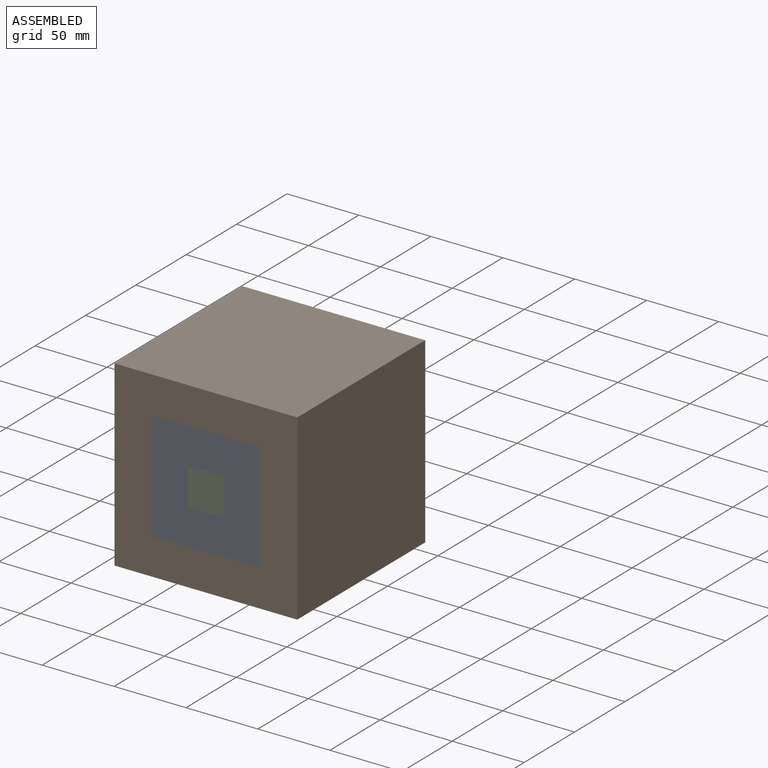
[diagram: assembled view]
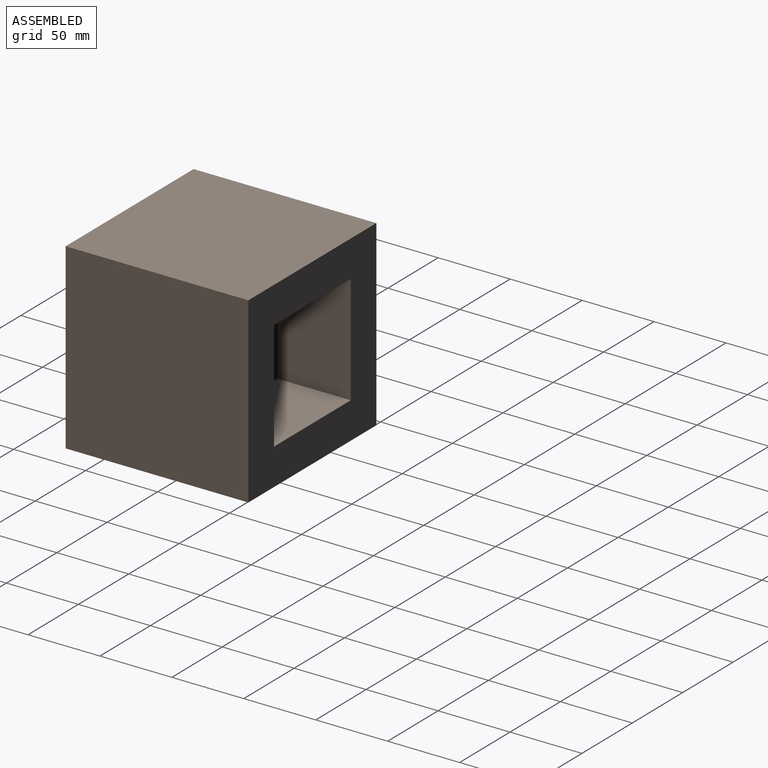
[diagram: assembled view, second angle]
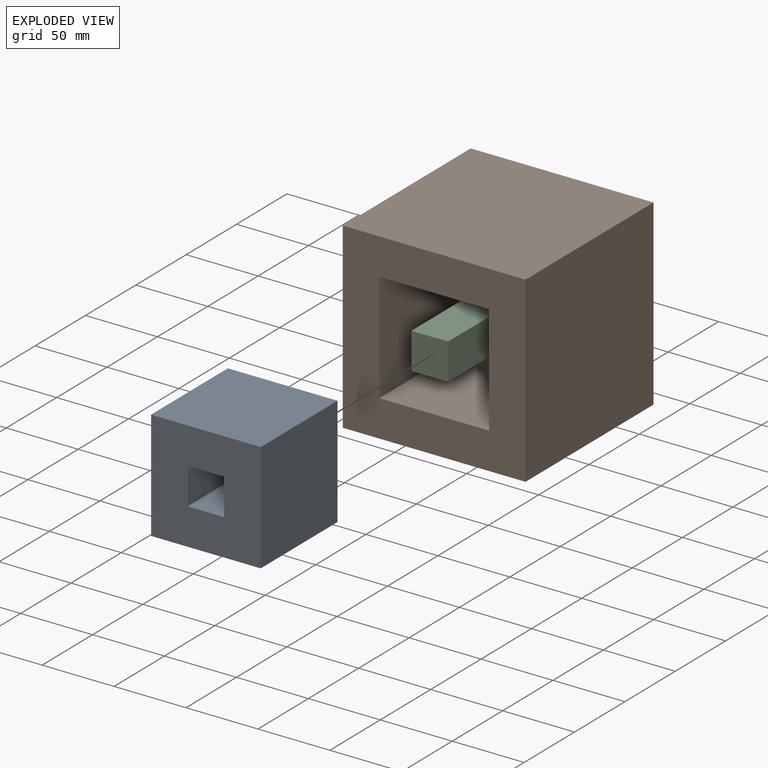
[diagram: exploded view]
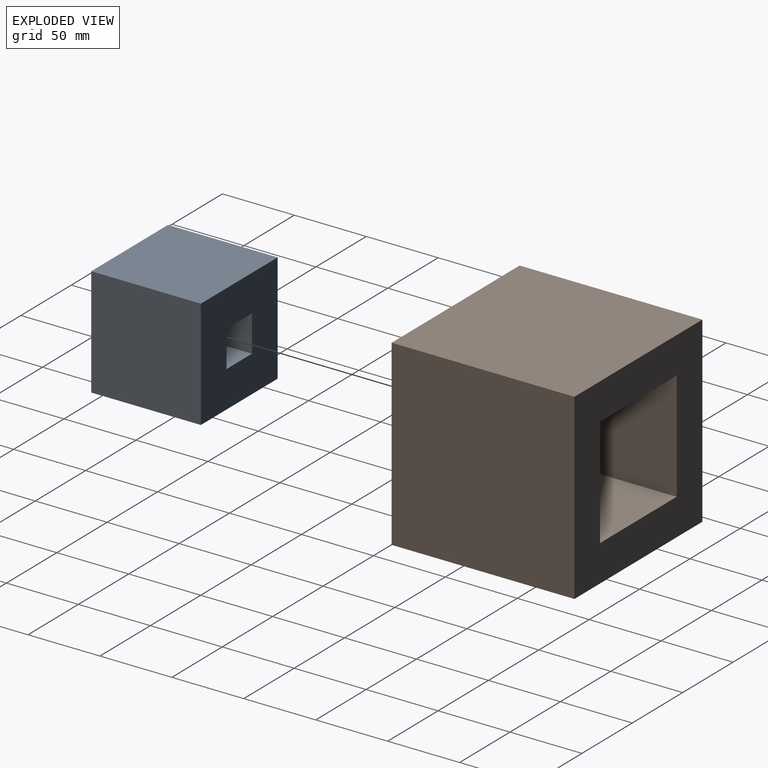
[diagram: exploded view, second angle]
ASSEMBLY  parts=3 mates=2
PART A: 10 faces, bbox 76.2x76.2x76.2 mm
  f0: plane 76.2x76.2mm, normal (0,0,1), area 5161.3mm2, adj f2,f3,f4,f5,f6,f7,f8,f9
  f1: plane 76.2x76.2mm, normal (0,0,-1), area 5161.3mm2, adj f2,f3,f4,f5,f6,f7,f8,f9
  f2: plane 76.2x76.2mm, normal (-1,0,0), area 5806.4mm2, adj f0,f1,f4,f5
  f3: plane 76.2x76.2mm, normal (1,0,0), area 5806.4mm2, adj f0,f1,f4,f5
  f4: plane 76.2x76.2mm, normal (0,-1,0), area 5806.4mm2, adj f0,f1,f2,f3
  f5: plane 76.2x76.2mm, normal (0,1,0), area 5806.4mm2, adj f0,f1,f2,f3
  f6: plane 76.2x25.4mm, normal (0,-1,0), area 1935.5mm2, adj f0,f1,f7,f9
  f7: plane 76.2x25.4mm, normal (1,0,0), area 1935.5mm2, adj f0,f1,f6,f8
  f8: plane 76.2x25.4mm, normal (0,1,0), area 1935.5mm2, adj f0,f1,f7,f9
  f9: plane 76.2x25.4mm, normal (-1,0,0), area 1935.5mm2, adj f0,f1,f6,f8
PART B: 10 faces, bbox 127x127x127 mm
  f0: plane 127x127mm, normal (0,0,1), area 10322.6mm2, adj f2,f3,f4,f5,f6,f7,f8,f9
  f1: plane 127x127mm, normal (0,0,-1), area 10322.6mm2, adj f2,f3,f4,f5,f6,f7,f8,f9
  f2: plane 127x127mm, normal (-1,0,0), area 16129mm2, adj f0,f1,f4,f5
  f3: plane 127x127mm, normal (1,0,0), area 16129mm2, adj f0,f1,f4,f5
  f4: plane 127x127mm, normal (0,-1,0), area 16129mm2, adj f0,f1,f2,f3
  f5: plane 127x127mm, normal (0,1,0), area 16129mm2, adj f0,f1,f2,f3
  f6: plane 127x76.2mm, normal (0,-1,0), area 9677.4mm2, adj f0,f1,f7,f9
  f7: plane 127x76.2mm, normal (1,0,0), area 9677.4mm2, adj f0,f1,f6,f8
  f8: plane 127x76.2mm, normal (0,1,0), area 9677.4mm2, adj f0,f1,f7,f9
  f9: plane 127x76.2mm, normal (-1,0,0), area 9677.4mm2, adj f0,f1,f6,f8
PART C: 6 faces, bbox 25.4x76.2x25.4 mm
  f0: plane 76.2x25.4mm, normal (0,0,1), area 1935.5mm2, adj f1,f3,f4,f5
  f1: plane 76.2x25.4mm, normal (-1,0,0), area 1935.5mm2, adj f0,f2,f4,f5
  f2: plane 76.2x25.4mm, normal (0,0,-1), area 1935.5mm2, adj f1,f3,f4,f5
  f3: plane 76.2x25.4mm, normal (1,0,0), area 1935.5mm2, adj f0,f2,f4,f5
  f4: plane 25.4x25.4mm, normal (0,-1,0), area 645.2mm2, adj f0,f1,f2,f3
  f5: plane 25.4x25.4mm, normal (0,1,0), area 645.2mm2, adj f0,f1,f2,f3
PLACE A rot(axis=(-0.58,-0.58,-0.58),120deg) t=(-37.5,-134.21,43.99)mm
PLACE B rot(axis=(1,0,0),90deg) t=(-75.6,-108.81,107.49)mm
PLACE C rot(axis=(0,-0.17,0.99),0deg) t=(-75.6,-96.11,43.99)mm
MATE slider C.f4 <-> A.f1  axis (0,-1,0) through (-75.6,-172.31,56.69)mm
MATE slider A.f1 <-> B.f0  axis (0,-1,0) through (-75.6,-172.31,82.09)mm
